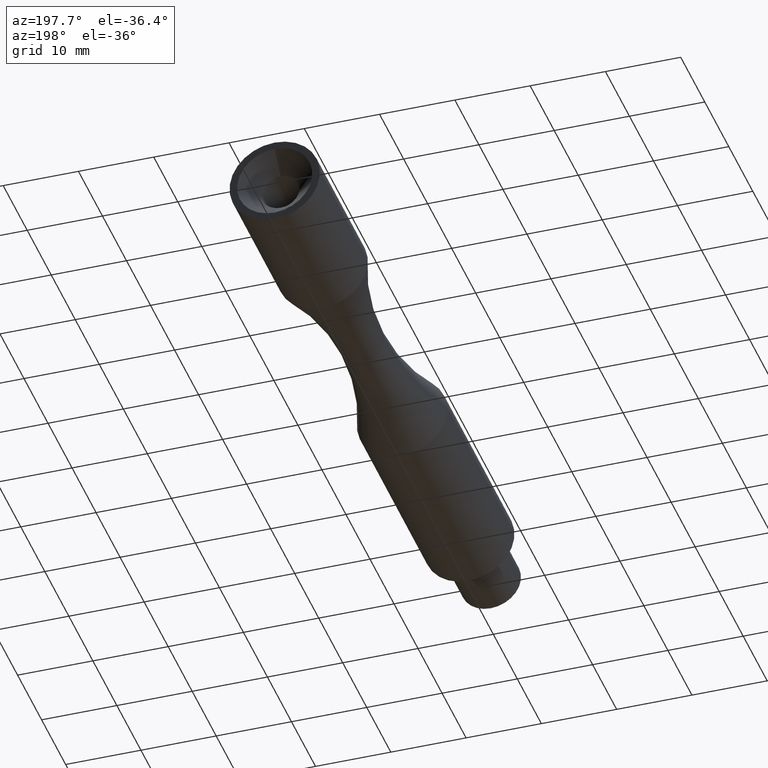
[diagram: clean part render]
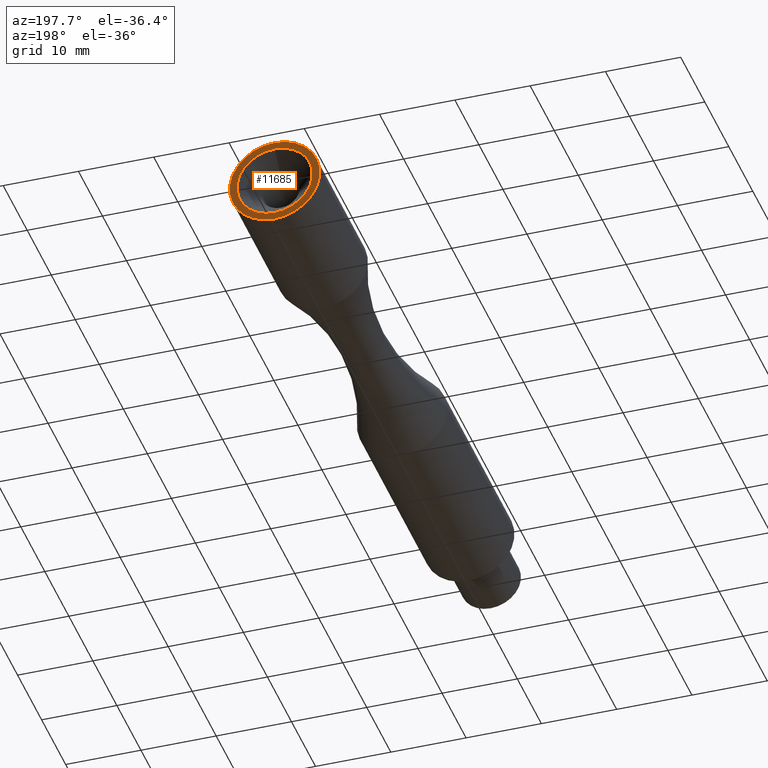
[diagram: same view with one face highlighted and labeled with its STEP entity id]
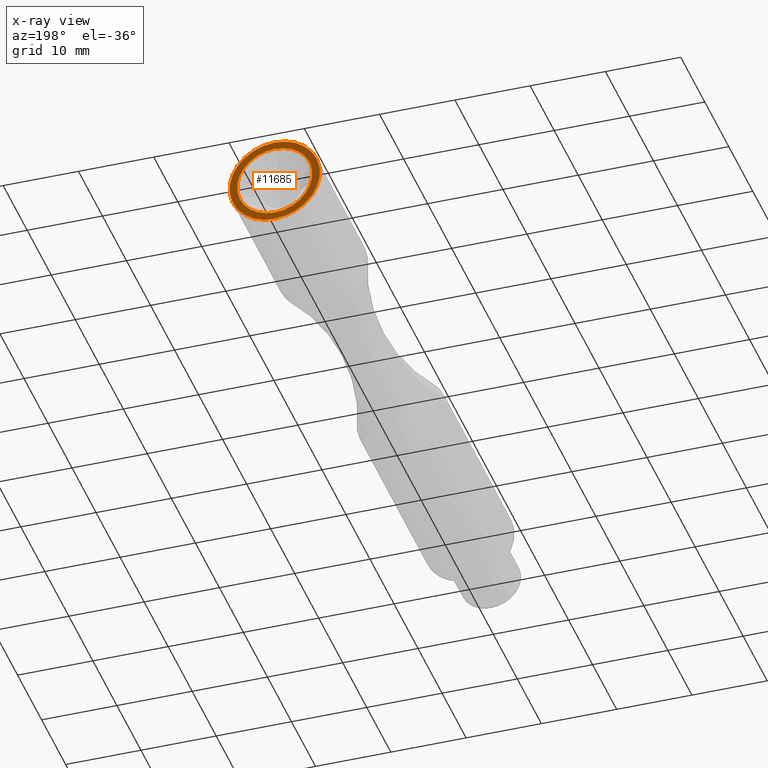
[diagram: x-ray of the same camera — body ghosted, the highlighted face saturated]
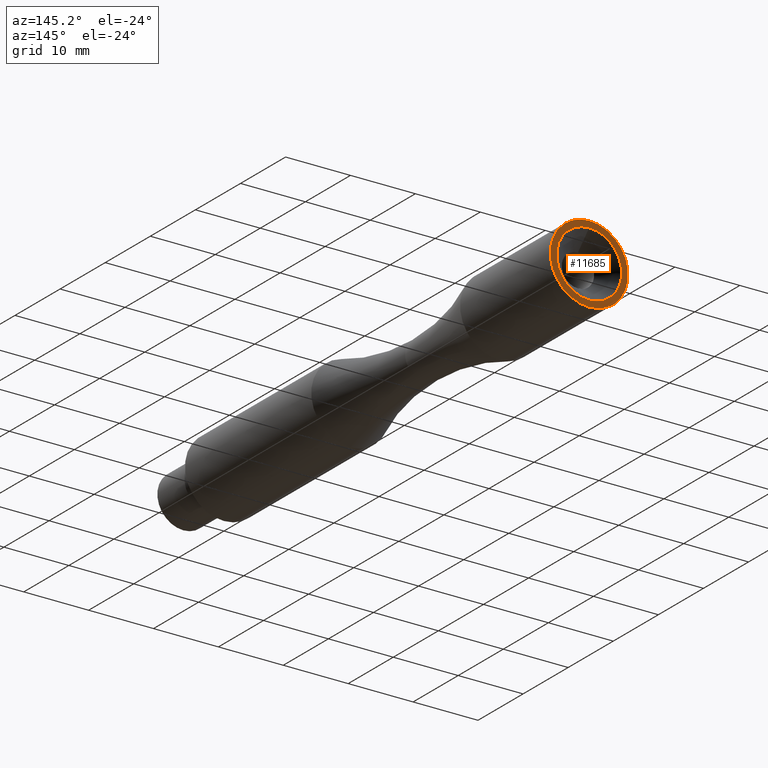
[diagram: same view with one face highlighted and labeled with its STEP entity id]
A machine part, auxiliary view. The second image highlights one B-rep face of the part: STEP entity #11685.
The next image is the same camera in x-ray: the body ghosted, the highlighted face saturated — about 0% of this face is hidden behind the body in this view.
A second angle (auxiliary view) of the same face is appended — the face is thin or edge-on in the first view.
In plain terms, the highlighted planar face has unit normal (0, 1, 0).
Its self-contained STEP definition (entity closure, byte-faithful):
#596 = PLANE ( 'NONE',  #11477 ) ;
#890 = ORIENTED_EDGE ( 'NONE', *, *, #10875, .F. ) ;
#1012 = CIRCLE ( 'NONE', #10238, 5.000000000000000000 ) ;
#1739 = CARTESIAN_POINT ( 'NONE',  ( 0.0000000000000000000, 81.00000000000000000, 0.0000000000000000000 ) ) ;
#1977 = FACE_OUTER_BOUND ( 'NONE', #8643, .T. ) ;
#2145 = FACE_BOUND ( 'NONE', #6713, .T. ) ;
#2433 = AXIS2_PLACEMENT_3D ( 'NONE', #3927, #9207, #9290 ) ;
#2668 = DIRECTION ( 'NONE',  ( 0.0000000000000000000, -0.0000000000000000000, 1.000000000000000000 ) ) ;
#2795 = DIRECTION ( 'NONE',  ( 0.0000000000000000000, 1.000000000000000000, 0.0000000000000000000 ) ) ;
#3027 = ORIENTED_EDGE ( 'NONE', *, *, #9204, .F. ) ;
#3104 = CARTESIAN_POINT ( 'NONE',  ( 0.0000000000000000000, 81.00000000000000000, 0.0000000000000000000 ) ) ;
#3228 = CARTESIAN_POINT ( 'NONE',  ( 0.0000000000000000000, 81.00000000000000000, 0.0000000000000000000 ) ) ;
#3301 = EDGE_CURVE ( 'NONE', #5541, #10963, #3625, .T. ) ;
#3625 = CIRCLE ( 'NONE', #13426, 6.000000000000000000 ) ;
#3867 = VERTEX_POINT ( 'NONE', #7036 ) ;
#3927 = CARTESIAN_POINT ( 'NONE',  ( 0.0000000000000000000, 81.00000000000000000, 0.0000000000000000000 ) ) ;
#4196 = CARTESIAN_POINT ( 'NONE',  ( 0.0000000000000000000, 81.00000000000000000, 5.000000000000000000 ) ) ;
#4273 = CIRCLE ( 'NONE', #2433, 5.000000000000000000 ) ;
#4592 = CARTESIAN_POINT ( 'NONE',  ( 0.0000000000000000000, 81.00000000000000000, -6.000000000000000000 ) ) ;
#5169 = DIRECTION ( 'NONE',  ( -0.0000000000000000000, -1.000000000000000000, -0.0000000000000000000 ) ) ;
#5541 = VERTEX_POINT ( 'NONE', #4592 ) ;
#5663 = AXIS2_PLACEMENT_3D ( 'NONE', #3104, #6338, #8437 ) ;
#6009 = VERTEX_POINT ( 'NONE', #4196 ) ;
#6338 = DIRECTION ( 'NONE',  ( -0.0000000000000000000, -1.000000000000000000, -0.0000000000000000000 ) ) ;
#6713 = EDGE_LOOP ( 'NONE', ( #10058, #890 ) ) ;
#7036 = CARTESIAN_POINT ( 'NONE',  ( 6.123233995736766300E-016, 81.00000000000000000, -5.000000000000000000 ) ) ;
#8437 = DIRECTION ( 'NONE',  ( 0.0000000000000000000, 0.0000000000000000000, -1.000000000000000000 ) ) ;
#8643 = EDGE_LOOP ( 'NONE', ( #8680, #3027 ) ) ;
#8680 = ORIENTED_EDGE ( 'NONE', *, *, #3301, .F. ) ;
#9204 = EDGE_CURVE ( 'NONE', #10963, #5541, #11398, .T. ) ;
#9207 = DIRECTION ( 'NONE',  ( -0.0000000000000000000, 1.000000000000000000, -0.0000000000000000000 ) ) ;
#9290 = DIRECTION ( 'NONE',  ( 0.0000000000000000000, 0.0000000000000000000, 1.000000000000000000 ) ) ;
#9379 = DIRECTION ( 'NONE',  ( 0.0000000000000000000, 0.0000000000000000000, 1.000000000000000000 ) ) ;
#9478 = DIRECTION ( 'NONE',  ( -0.0000000000000000000, 1.000000000000000000, -0.0000000000000000000 ) ) ;
#10058 = ORIENTED_EDGE ( 'NONE', *, *, #11687, .F. ) ;
#10238 = AXIS2_PLACEMENT_3D ( 'NONE', #3228, #9478, #9379 ) ;
#10594 = CARTESIAN_POINT ( 'NONE',  ( 0.0000000000000000000, 81.00000000000000000, 0.0000000000000000000 ) ) ;
#10875 = EDGE_CURVE ( 'NONE', #3867, #6009, #1012, .T. ) ;
#10963 = VERTEX_POINT ( 'NONE', #11893 ) ;
#11398 = CIRCLE ( 'NONE', #5663, 6.000000000000000000 ) ;
#11477 = AXIS2_PLACEMENT_3D ( 'NONE', #1739, #2795, #2668 ) ;
#11685 = ADVANCED_FACE ( 'NONE', ( #2145, #1977 ), #596, .T. ) ;
#11687 = EDGE_CURVE ( 'NONE', #6009, #3867, #4273, .T. ) ;
#11893 = CARTESIAN_POINT ( 'NONE',  ( 7.347880794884120700E-016, 81.00000000000000000, 6.000000000000000000 ) ) ;
#12837 = DIRECTION ( 'NONE',  ( 0.0000000000000000000, 0.0000000000000000000, -1.000000000000000000 ) ) ;
#13426 = AXIS2_PLACEMENT_3D ( 'NONE', #10594, #5169, #12837 ) ;